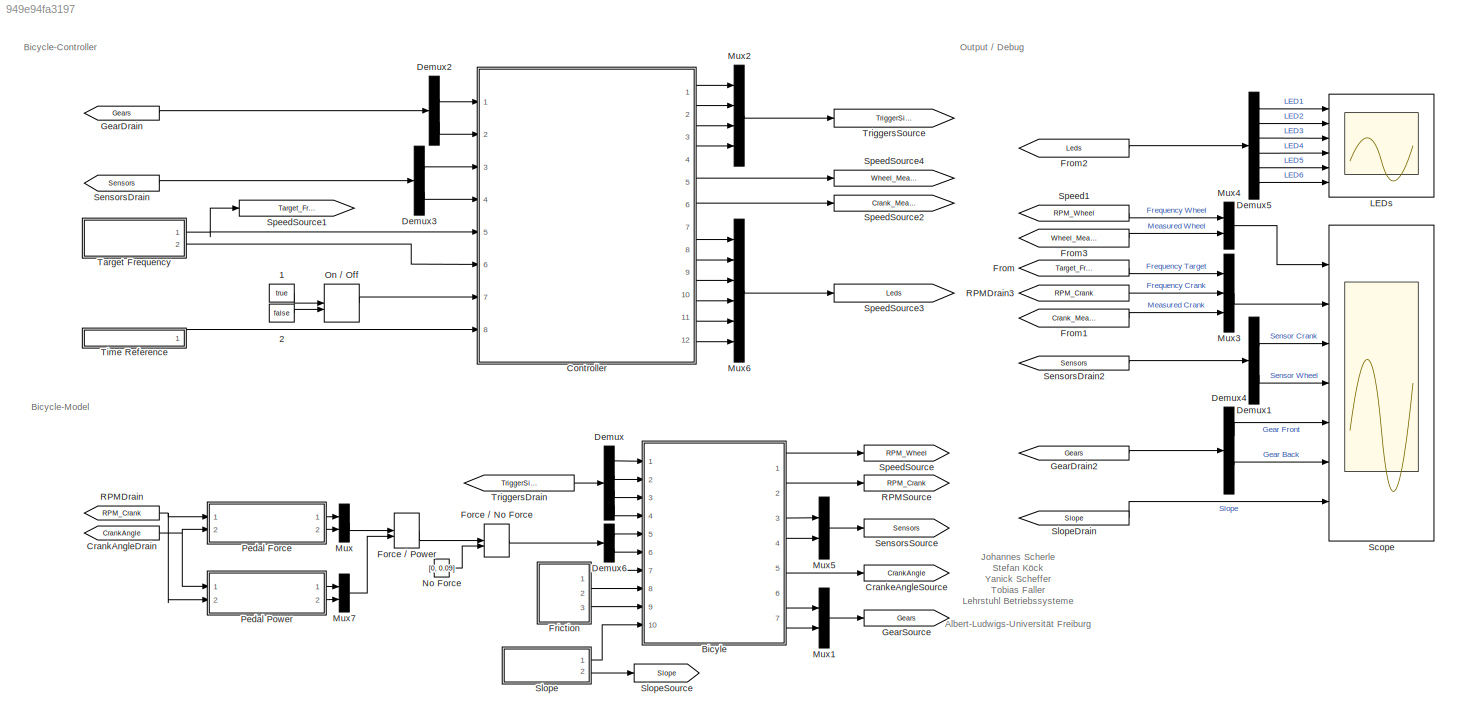
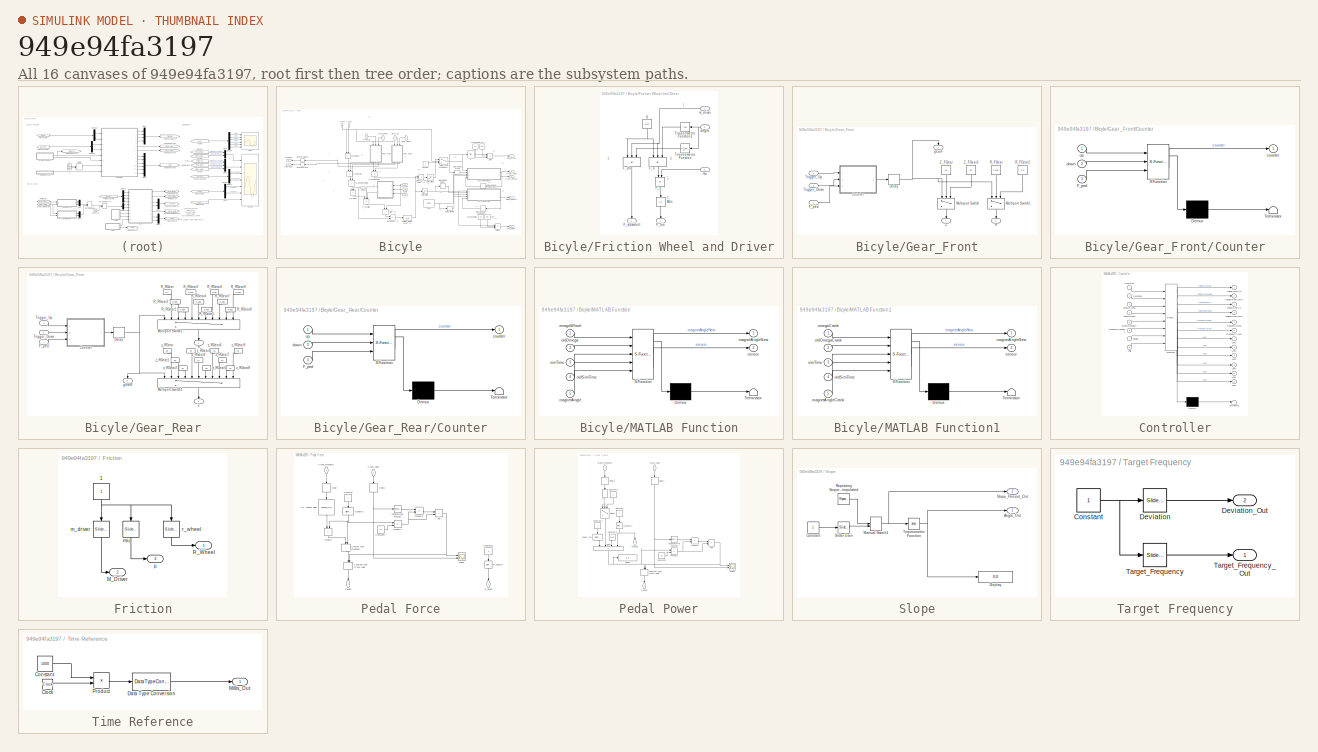
[diagram: thumbnail index - all 16 canvases of the model, root first then tree order]
MODEL slx_949e94fa3197
KIND model
CONFIG AbsTol = auto
CONFIG EnableMultiTasking = on
CONFIG FixedStep = 0.005
CONFIG MaxStep = auto
CONFIG MinStep = auto
CONFIG RelTol = 1e-3
CONFIG SampleTimeConstraint = Unconstrained
CONFIG Solver = FixedStepAuto
CONFIG SolverName = FixedStepAuto
CONFIG StartTime = 0.0
CONFIG StopTime = inf
BLOCK [Constant] 1
  OutDataTypeStr = boolean
  Value = true
BLOCK [Constant] 2
  OutDataTypeStr = boolean
  Value = false
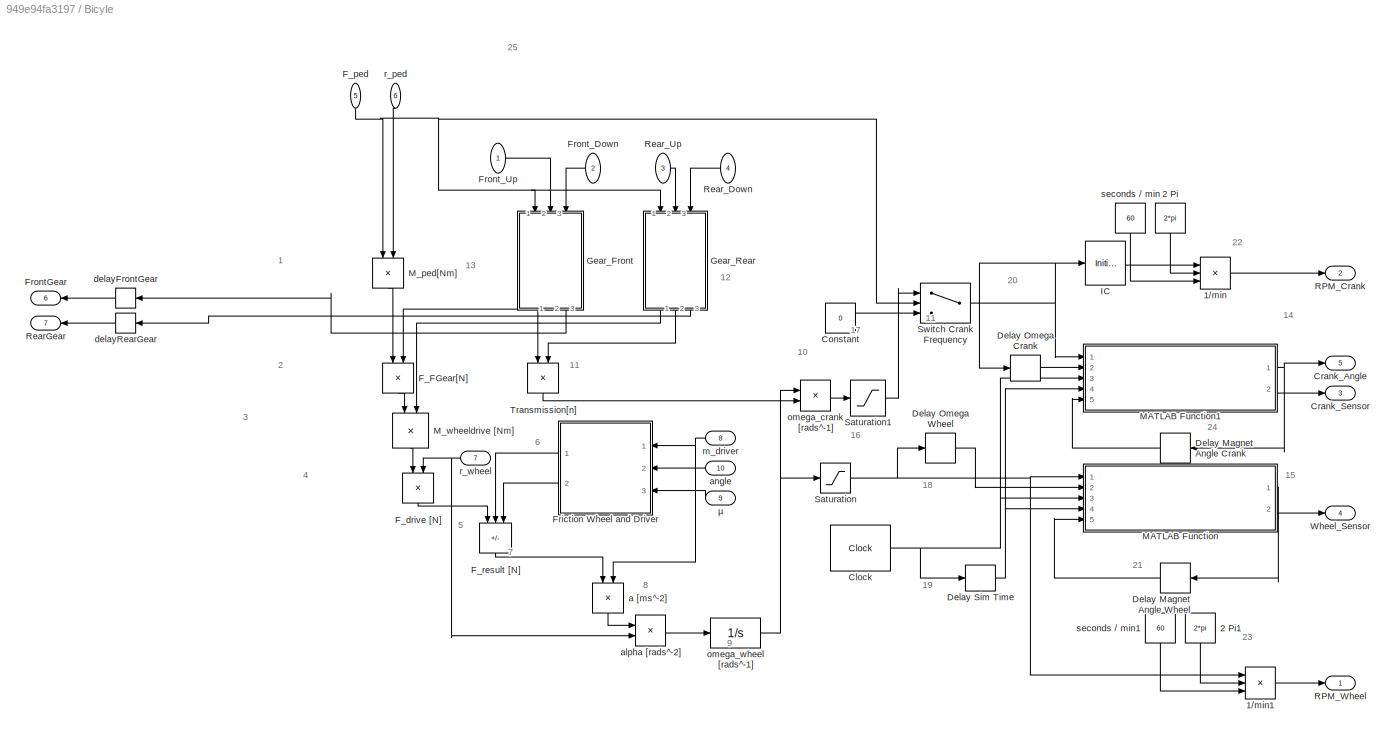
BLOCK [SubSystem] Bicyle
  Ports = [10, 7]
  RequestExecContextInheritance = off
BLOCK [Product] Bicyle/1//min
  Inputs = */*
  OutDataTypeStr = double
  Ports = [3, 1]
BLOCK [Product] Bicyle/1//min1
  Inputs = */*
  Ports = [3, 1]
BLOCK [Constant] Bicyle/2 Pi
  NameLocation = right
  Value = 2*pi
BLOCK [Constant] Bicyle/2 Pi1
  NameLocation = right
  Value = 2*pi
BLOCK [Clock] Bicyle/Clock
  Decimation = 1
  DisplayTime = on
BLOCK [Constant] Bicyle/Constant
  NameLocation = top
  Value = 0
BLOCK [Outport] Bicyle/Crank_Angle
  NameLocation = top
  Port = 5
  VectorParamsAs1DForOutWhenUnconnected = off
BLOCK [Outport] Bicyle/Crank_Sensor
  Port = 3
  VectorParamsAs1DForOutWhenUnconnected = off
BLOCK [Delay] Bicyle/Delay Magnet Angle Crank 
  DelayLength = 1
  InitialCondition = 0
  InputPortMap = u0
  NameLocation = top
  Ports = [1, 1]
BLOCK [Delay] Bicyle/Delay Magnet Angle Wheel
  DelayLength = 1
  InitialCondition = 0
  InputPortMap = u0
  NameLocation = top
  Ports = [1, 1]
BLOCK [Delay] Bicyle/Delay Omega Crank
  DelayLength = 1
  InitialCondition = 1
  InputPortMap = u0
  NameLocation = top
  Ports = [1, 1]
BLOCK [Delay] Bicyle/Delay Omega Wheel
  DelayLength = 1
  InitialCondition = 0
  InputPortMap = u0
  NameLocation = top
  Ports = [1, 1]
BLOCK [Delay] Bicyle/Delay Sim Time
  DelayLength = 1
  InitialCondition = 0
  InputPortMap = u0
  Ports = [1, 1]
BLOCK [Product] Bicyle/F_FGear[N]
  Inputs = */
  NameLocation = left
  Ports = [2, 1]
BLOCK [Product] Bicyle/F_drive [N]
  Inputs = */
  NameLocation = left
  Ports = [2, 1]
BLOCK [Inport] Bicyle/F_ped
  NameLocation = left
  Port = 5
BLOCK [Sum] Bicyle/F_result [N]
  IconShape = rectangular
  Inputs = +--
  NameLocation = right
  Ports = [3, 1]
BLOCK [SubSystem] Bicyle/Friction Wheel and Driver
  Ports = [3, 2]
  RequestExecContextInheritance = off
BLOCK [Abs] Bicyle/Friction Wheel and Driver/Abs
  NameLocation = left
  SaturateOnIntegerOverflow = off
BLOCK [Product] Bicyle/Friction Wheel and Driver/F_dh
  Inputs = 3
  NameLocation = left
  Ports = [3, 1]
BLOCK [Outport] Bicyle/Friction Wheel and Driver/F_downhill
  NameLocation = right
  Port = 2
  VectorParamsAs1DForOutWhenUnconnected = off
BLOCK [Outport] Bicyle/Friction Wheel and Driver/F_fric
  NameLocation = right
  VectorParamsAs1DForOutWhenUnconnected = off
BLOCK [Product] Bicyle/Friction Wheel and Driver/F_n
  Inputs = 3
  NameLocation = left
  Ports = [3, 1]
BLOCK [Product] Bicyle/Friction Wheel and Driver/F_r
  NameLocation = left
  Ports = [2, 1]
BLOCK [Trigonometry] Bicyle/Friction Wheel and Driver/Trigonometric Function
  NameLocation = top
  Ports = [1, 1]
BLOCK [Trigonometry] Bicyle/Friction Wheel and Driver/Trigonometric Function1
  NameLocation = top
  Operator = cos
  Ports = [1, 1]
BLOCK [Inport] Bicyle/Friction Wheel and Driver/angle
  NameLocation = top
  Port = 2
BLOCK [Constant] Bicyle/Friction Wheel and Driver/g
  NameLocation = left
  Value = 9.81
BLOCK [Inport] Bicyle/Friction Wheel and Driver/m_driver
BLOCK [Inport] Bicyle/Friction Wheel and Driver/mu
  NameLocation = top
  Port = 3
BLOCK [Outport] Bicyle/FrontGear
  NameLocation = top
  Port = 6
  VectorParamsAs1DForOutWhenUnconnected = off
BLOCK [Inport] Bicyle/Front_Down
  NameLocation = top
  Port = 2
BLOCK [Inport] Bicyle/Front_Up
BLOCK [SubSystem] Bicyle/Gear_Front
  NameLocation = left
  Ports = [3, 3]
  RequestExecContextInheritance = off
BLOCK [SubSystem] Bicyle/Gear_Front/Counter
  ErrorFcn = Stateflow.Translate.translate
  PermitHierarchicalResolution = ExplicitOnly
  Ports = [3, 1]
  RequestExecContextInheritance = off
  SFBlockType = Chart
  TreatAsAtomicUnit = on
BLOCK [Demux] Bicyle/Gear_Front/Counter/ Demux 
  Outputs = 1
  Ports = [1, 1]
BLOCK [S-Function] Bicyle/Gear_Front/Counter/ SFunction 
  EnableBusSupport = on
  FunctionName = sf_sfun
  PortCounts = [3 2]
  Ports = [3, 2]
  SFcnIsStateOwnerBlock = off
  SFunctionDeploymentMode = off
  Tag = Stateflow S-Function 3
BLOCK [Terminator] Bicyle/Gear_Front/Counter/ Terminator 
BLOCK [Inport] Bicyle/Gear_Front/Counter/F_ped
  Port = 3
BLOCK [Outport] Bicyle/Gear_Front/Counter/counter
  VectorParamsAs1DForOutWhenUnconnected = off
BLOCK [Inport] Bicyle/Gear_Front/Counter/down
  Port = 2
BLOCK [Inport] Bicyle/Gear_Front/Counter/up
BLOCK [Delay] Bicyle/Gear_Front/Delay
  DelayLength = 1
  InputPortMap = u0
  Ports = [1, 1]
BLOCK [Inport] Bicyle/Gear_Front/F_ped
BLOCK [MultiPortSwitch] Bicyle/Gear_Front/Multiport Switch
  DiagnosticForDefault = Warning
  InputSameDT = off
  Inputs = 2
  NameLocation = left
  Ports = [3, 1]
  SaturateOnIntegerOverflow = off
BLOCK [MultiPortSwitch] Bicyle/Gear_Front/Multiport Switch1
  DiagnosticForDefault = Warning
  InputSameDT = off
  Inputs = 2
  NameLocation = left
  Ports = [3, 1]
  SaturateOnIntegerOverflow = off
BLOCK [Outport] Bicyle/Gear_Front/R
  NameLocation = right
  Port = 2
  VectorParamsAs1DForOutWhenUnconnected = off
BLOCK [Constant] Bicyle/Gear_Front/R_FGear
  NameLocation = left
  Value = 0.136
BLOCK [Constant] Bicyle/Gear_Front/R_FGear2
  NameLocation = left
  Value = 0.2
BLOCK [Inport] Bicyle/Gear_Front/Trigger_Down
  Port = 3
BLOCK [Inport] Bicyle/Gear_Front/Trigger_Up
  Port = 2
BLOCK [Outport] Bicyle/Gear_Front/Z
  NameLocation = right
  VectorParamsAs1DForOutWhenUnconnected = off
BLOCK [Constant] Bicyle/Gear_Front/Z_FGear
  NameLocation = left
  Value = 34
BLOCK [Constant] Bicyle/Gear_Front/Z_FGear2
  NameLocation = left
  Value = 50
BLOCK [Outport] Bicyle/Gear_Front/gearF
  NameLocation = right
  Port = 3
  VectorParamsAs1DForOutWhenUnconnected = off
BLOCK [SubSystem] Bicyle/Gear_Rear
  NameLocation = right
  Ports = [3, 3]
  RequestExecContextInheritance = off
BLOCK [SubSystem] Bicyle/Gear_Rear/Counter
  ErrorFcn = Stateflow.Translate.translate
  PermitHierarchicalResolution = ExplicitOnly
  Ports = [3, 1]
  RequestExecContextInheritance = off
  SFBlockType = Chart
  TreatAsAtomicUnit = on
BLOCK [Demux] Bicyle/Gear_Rear/Counter/ Demux 
  Outputs = 1
  Ports = [1, 1]
BLOCK [S-Function] Bicyle/Gear_Rear/Counter/ SFunction 
  EnableBusSupport = on
  FunctionName = sf_sfun
  PortCounts = [3 2]
  Ports = [3, 2]
  SFcnIsStateOwnerBlock = off
  SFunctionDeploymentMode = off
  Tag = Stateflow S-Function 4
BLOCK [Terminator] Bicyle/Gear_Rear/Counter/ Terminator 
BLOCK [Inport] Bicyle/Gear_Rear/Counter/F_ped
  Port = 3
BLOCK [Outport] Bicyle/Gear_Rear/Counter/counter
  VectorParamsAs1DForOutWhenUnconnected = off
BLOCK [Inport] Bicyle/Gear_Rear/Counter/down
  Port = 2
BLOCK [Inport] Bicyle/Gear_Rear/Counter/up
BLOCK [Delay] Bicyle/Gear_Rear/Delay
  DelayLength = 1
  InputPortMap = u0
  Ports = [1, 1]
BLOCK [Inport] Bicyle/Gear_Rear/F_ped
BLOCK [MultiPortSwitch] Bicyle/Gear_Rear/Multiport Switch1
  DiagnosticForDefault = Warning
  InputSameDT = off
  Inputs = 10
  NameLocation = left
  Ports = [11, 1]
  SaturateOnIntegerOverflow = off
BLOCK [MultiPortSwitch] Bicyle/Gear_Rear/Multiport Switch2
  DiagnosticForDefault = Warning
  InputSameDT = off
  Inputs = 10
  NameLocation = left
  Ports = [11, 1]
  SaturateOnIntegerOverflow = off
BLOCK [Outport] Bicyle/Gear_Rear/R
  NameLocation = right
  VectorParamsAs1DForOutWhenUnconnected = off
BLOCK [Constant] Bicyle/Gear_Rear/R_RGear
  NameLocation = right
  Value = 0.1
BLOCK [Constant] Bicyle/Gear_Rear/R_RGear1
  NameLocation = right
  Value = 0.084
BLOCK [Constant] Bicyle/Gear_Rear/R_RGear2
  NameLocation = right
  Value = 0.092
BLOCK [Constant] Bicyle/Gear_Rear/R_RGear3
  NameLocation = right
  Value = 0.076
BLOCK [Constant] Bicyle/Gear_Rear/R_RGear4
  NameLocation = right
  Value = 0.068
BLOCK [Constant] Bicyle/Gear_Rear/R_RGear5
  NameLocation = right
  Value = 0.064
BLOCK [Constant] Bicyle/Gear_Rear/R_RGear6
  NameLocation = right
  Value = 0.06
BLOCK [Constant] Bicyle/Gear_Rear/R_RGear7
  NameLocation = right
  Value = 0.056
BLOCK [Constant] Bicyle/Gear_Rear/R_RGear8
  NameLocation = right
  Value = 0.052
BLOCK [Constant] Bicyle/Gear_Rear/R_RGear9
  NameLocation = right
  Value = 0.048
BLOCK [Inport] Bicyle/Gear_Rear/Trigger_Down
  Port = 3
BLOCK [Inport] Bicyle/Gear_Rear/Trigger_Up
  NameLocation = top
  Port = 2
BLOCK [Outport] Bicyle/Gear_Rear/Z
  NameLocation = right
  Port = 2
  VectorParamsAs1DForOutWhenUnconnected = off
BLOCK [Outport] Bicyle/Gear_Rear/gearR
  NameLocation = right
  Port = 3
  VectorParamsAs1DForOutWhenUnconnected = off
BLOCK [Constant] Bicyle/Gear_Rear/z_RGear
  NameLocation = right
  Value = 25
BLOCK [Constant] Bicyle/Gear_Rear/z_RGear1
  NameLocation = right
  Value = 23
BLOCK [Constant] Bicyle/Gear_Rear/z_RGear2
  NameLocation = right
  Value = 21
BLOCK [Constant] Bicyle/Gear_Rear/z_RGear3
  NameLocation = right
  Value = 19
BLOCK [Constant] Bicyle/Gear_Rear/z_RGear4
  NameLocation = right
  Value = 17
BLOCK [Constant] Bicyle/Gear_Rear/z_RGear5
  NameLocation = right
  Value = 16
BLOCK [Constant] Bicyle/Gear_Rear/z_RGear6
  NameLocation = right
  Value = 15
BLOCK [Constant] Bicyle/Gear_Rear/z_RGear7
  NameLocation = right
  Value = 14
BLOCK [Constant] Bicyle/Gear_Rear/z_RGear8
  NameLocation = right
  Value = 13
BLOCK [Constant] Bicyle/Gear_Rear/z_RGear9
  NameLocation = right
  Value = 12
BLOCK [InitialCondition] Bicyle/IC
  Value = 0
BLOCK [SubSystem] Bicyle/MATLAB Function
  ErrorFcn = Stateflow.Translate.translate
  PermitHierarchicalResolution = ExplicitOnly
  Ports = [5, 2]
  RequestExecContextInheritance = off
  SFBlockType = MATLAB Function
  TreatAsAtomicUnit = on
BLOCK [Demux] Bicyle/MATLAB Function/ Demux 
  Outputs = 1
  Ports = [1, 1]
BLOCK [S-Function] Bicyle/MATLAB Function/ SFunction 
  EnableBusSupport = on
  FunctionName = sf_sfun
  PortCounts = [5 3]
  Ports = [5, 3]
  SFcnIsStateOwnerBlock = off
  SFunctionDeploymentMode = off
  Tag = Stateflow S-Function 2
BLOCK [Terminator] Bicyle/MATLAB Function/ Terminator 
BLOCK [Inport] Bicyle/MATLAB Function/magnetAngle
  Port = 5
BLOCK [Outport] Bicyle/MATLAB Function/magnetAngleNew
  VectorParamsAs1DForOutWhenUnconnected = off
BLOCK [Inport] Bicyle/MATLAB Function/oldOmega
  Port = 2
BLOCK [Inport] Bicyle/MATLAB Function/oldSimTime
  Port = 4
BLOCK [Inport] Bicyle/MATLAB Function/omegaWheel
BLOCK [Outport] Bicyle/MATLAB Function/sensor
  Port = 2
  VectorParamsAs1DForOutWhenUnconnected = off
BLOCK [Inport] Bicyle/MATLAB Function/simTime
  Port = 3
BLOCK [SubSystem] Bicyle/MATLAB Function1
  ErrorFcn = Stateflow.Translate.translate
  NameLocation = top
  PermitHierarchicalResolution = ExplicitOnly
  Ports = [5, 2]
  RequestExecContextInheritance = off
  SFBlockType = MATLAB Function
  TreatAsAtomicUnit = on
BLOCK [Demux] Bicyle/MATLAB Function1/ Demux 
  Outputs = 1
  Ports = [1, 1]
BLOCK [S-Function] Bicyle/MATLAB Function1/ SFunction 
  EnableBusSupport = on
  FunctionName = sf_sfun
  PortCounts = [5 3]
  Ports = [5, 3]
  SFcnIsStateOwnerBlock = off
  SFunctionDeploymentMode = off
  Tag = Stateflow S-Function 5
BLOCK [Terminator] Bicyle/MATLAB Function1/ Terminator 
BLOCK [Inport] Bicyle/MATLAB Function1/magnetAngleCrank
  Port = 5
BLOCK [Outport] Bicyle/MATLAB Function1/magnetAngleNew
  VectorParamsAs1DForOutWhenUnconnected = off
BLOCK [Inport] Bicyle/MATLAB Function1/oldOmegaCrank
  Port = 2
BLOCK [Inport] Bicyle/MATLAB Function1/oldSimTime
  Port = 4
BLOCK [Inport] Bicyle/MATLAB Function1/omegaCrank
BLOCK [Outport] Bicyle/MATLAB Function1/sensor
  Port = 2
  VectorParamsAs1DForOutWhenUnconnected = off
BLOCK [Inport] Bicyle/MATLAB Function1/simTime
  Port = 3
BLOCK [Product] Bicyle/M_ped[Nm]
  NameLocation = left
  Ports = [2, 1]
BLOCK [Product] Bicyle/M_wheeldrive [Nm]
  NameLocation = left
  Ports = [2, 1]
BLOCK [Outport] Bicyle/RPM_Crank
  Port = 2
  VectorParamsAs1DForOutWhenUnconnected = off
BLOCK [Outport] Bicyle/RPM_Wheel
  VectorParamsAs1DForOutWhenUnconnected = off
BLOCK [Outport] Bicyle/RearGear
  Port = 7
  VectorParamsAs1DForOutWhenUnconnected = off
BLOCK [Inport] Bicyle/Rear_Down
  Port = 4
BLOCK [Inport] Bicyle/Rear_Up
  NameLocation = top
  Port = 3
BLOCK [Saturate] Bicyle/Saturation
  LowerLimit = 0
  UpperLimit = 100
BLOCK [Saturate] Bicyle/Saturation1
  LowerLimit = 0
  NameLocation = top
  UpperLimit = 18
BLOCK [Switch] Bicyle/Switch Crank Frequency
  Criteria = u2 ~= 0
  InputSameDT = off
  NameLocation = top
  SaturateOnIntegerOverflow = off
BLOCK [Product] Bicyle/Transmission[n]
  Inputs = */
  NameLocation = left
  Ports = [2, 1]
BLOCK [Outport] Bicyle/Wheel_Sensor
  Port = 4
  VectorParamsAs1DForOutWhenUnconnected = off
BLOCK [Product] Bicyle/a [ms^-2]
  Inputs = */
  NameLocation = left
  Ports = [2, 1]
BLOCK [Product] Bicyle/alpha [rads^-2]
  Inputs = */
  Ports = [2, 1]
BLOCK [Inport] Bicyle/angle
  NameLocation = top
  Port = 10
BLOCK [Delay] Bicyle/delayFrontGear
  DelayLength = 1
  InitialCondition = 0
  InputPortMap = u0
  NameLocation = top
  Ports = [1, 1]
BLOCK [Delay] Bicyle/delayRearGear
  DelayLength = 1
  InitialCondition = 0
  InputPortMap = u0
  Ports = [1, 1]
BLOCK [Inport] Bicyle/m_driver
  NameLocation = top
  Port = 8
BLOCK [Product] Bicyle/omega_crank [rads^-1]
  Inputs = */
  Ports = [2, 1]
BLOCK [Integrator] Bicyle/omega_wheel [rads^-1]
  LimitOutput = on
  LowerSaturationLimit = 0
  NameLocation = top
  Ports = [1, 1]
  UpperSaturationLimit = 60
BLOCK [Inport] Bicyle/r_ped
  NameLocation = right
  Port = 6
BLOCK [Inport] Bicyle/r_wheel
  NameLocation = top
  Port = 7
BLOCK [Constant] Bicyle/seconds // min
  NameLocation = left
  Value = 60
BLOCK [Constant] Bicyle/seconds // min1
  NameLocation = left
  Value = 60
BLOCK [Inport] Bicyle/µ
  Port = 9
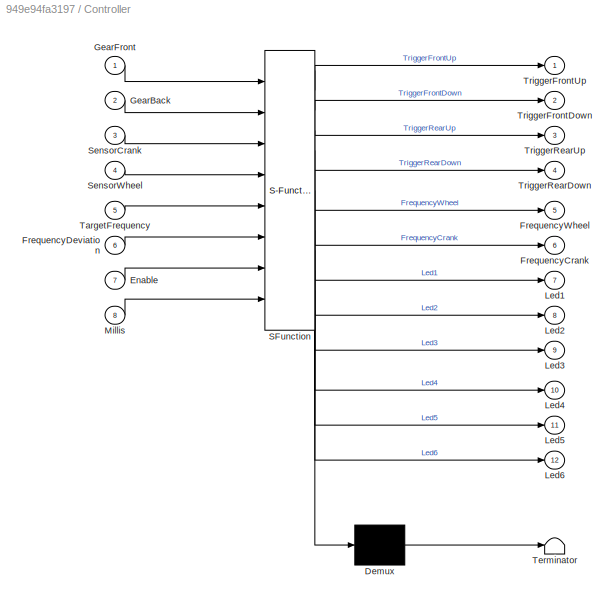
BLOCK [SubSystem] Controller
  ErrorFcn = Stateflow.Translate.translate
  PermitHierarchicalResolution = ExplicitOnly
  Ports = [8, 12]
  RequestExecContextInheritance = off
  SFBlockType = Chart
  SystemSampleTime = 0.005
  TreatAsAtomicUnit = on
BLOCK [Demux] Controller/ Demux 
  Outputs = 1
  Ports = [1, 1]
BLOCK [S-Function] Controller/ SFunction 
  EnableBusSupport = on
  FunctionName = sf_sfun
  PortCounts = [8 13]
  Ports = [8, 13]
  SFcnIsStateOwnerBlock = off
  SFunctionDeploymentMode = off
  Tag = Stateflow S-Function 1
BLOCK [Terminator] Controller/ Terminator 
BLOCK [Inport] Controller/Enable
  Port = 7
BLOCK [Outport] Controller/FrequencyCrank
  Port = 6
  VectorParamsAs1DForOutWhenUnconnected = off
BLOCK [Inport] Controller/FrequencyDeviation
  Port = 6
BLOCK [Outport] Controller/FrequencyWheel
  Port = 5
  VectorParamsAs1DForOutWhenUnconnected = off
BLOCK [Inport] Controller/GearBack
  Port = 2
BLOCK [Inport] Controller/GearFront
BLOCK [Outport] Controller/Led1
  Port = 7
  VectorParamsAs1DForOutWhenUnconnected = off
BLOCK [Outport] Controller/Led2
  Port = 8
  VectorParamsAs1DForOutWhenUnconnected = off
BLOCK [Outport] Controller/Led3
  Port = 9
  VectorParamsAs1DForOutWhenUnconnected = off
BLOCK [Outport] Controller/Led4
  Port = 10
  VectorParamsAs1DForOutWhenUnconnected = off
BLOCK [Outport] Controller/Led5
  Port = 11
  VectorParamsAs1DForOutWhenUnconnected = off
BLOCK [Outport] Controller/Led6
  Port = 12
  VectorParamsAs1DForOutWhenUnconnected = off
BLOCK [Inport] Controller/Millis
  Port = 8
BLOCK [Inport] Controller/SensorCrank
  Port = 3
BLOCK [Inport] Controller/SensorWheel
  Port = 4
BLOCK [Inport] Controller/TargetFrequency
  Port = 5
BLOCK [Outport] Controller/TriggerFrontDown
  Port = 2
  VectorParamsAs1DForOutWhenUnconnected = off
BLOCK [Outport] Controller/TriggerFrontUp
  VectorParamsAs1DForOutWhenUnconnected = off
BLOCK [Outport] Controller/TriggerRearDown
  Port = 4
  VectorParamsAs1DForOutWhenUnconnected = off
BLOCK [Outport] Controller/TriggerRearUp
  Port = 3
  VectorParamsAs1DForOutWhenUnconnected = off
BLOCK [From] CrankAngleDrain
  GotoTag = CrankAngle
BLOCK [Goto] CrankeAngleSource
  GotoTag = CrankAngle
BLOCK [Demux] Demux
  Ports = [1, 4]
BLOCK [Demux] Demux1
  Outputs = 2
  Ports = [1, 2]
BLOCK [Demux] Demux2
  Outputs = 2
  Ports = [1, 2]
BLOCK [Demux] Demux3
  Outputs = 2
  Ports = [1, 2]
BLOCK [Demux] Demux4
  Outputs = 2
  Ports = [1, 2]
BLOCK [Demux] Demux5
  Outputs = 6
  Ports = [1, 6]
BLOCK [Demux] Demux6
  Outputs = 2
  Ports = [1, 2]
BLOCK [ManualSwitch] Force // No Force
  NameLocation = top
BLOCK [ManualSwitch] Force // Power
  CurrentSetting = 0
  NameLocation = top
BLOCK [SubSystem] Friction
  Ports = [0, 3]
  RequestExecContextInheritance = off
BLOCK [Constant] Friction/1
  NameLocation = left
BLOCK [Outport] Friction/M_Driver
  Port = 2
  VectorParamsAs1DForOutWhenUnconnected = off
BLOCK [Outport] Friction/R_Wheel
  VectorParamsAs1DForOutWhenUnconnected = off
BLOCK [Reference] Friction/m_driver  REF=simulink/Math
Operations/Slider
Gain
  NameLocation = left
  Ports = [1, 1]
  SourceBlock = simulink/Math\nOperations/Slider\nGain
  SourceProductBaseCode = SL
  SourceType = Slider Gain
BLOCK [Reference] Friction/mu  REF=simulink/Math
Operations/Slider
Gain
  NameLocation = left
  Ports = [1, 1]
  SourceBlock = simulink/Math\nOperations/Slider\nGain
  SourceProductBaseCode = SL
  SourceType = Slider Gain
BLOCK [Reference] Friction/r_wheel  REF=simulink/Math
Operations/Slider
Gain
  NameLocation = left
  Ports = [1, 1]
  SourceBlock = simulink/Math\nOperations/Slider\nGain
  SourceProductBaseCode = SL
  SourceType = Slider Gain
BLOCK [Outport] Friction/µ
  Port = 3
  VectorParamsAs1DForOutWhenUnconnected = off
BLOCK [From] From
  GotoTag = Target_Frequency
BLOCK [From] From1
  GotoTag = Crank_Measured
BLOCK [From] From2
  GotoTag = Leds
BLOCK [From] From3
  GotoTag = Wheel_Measured
BLOCK [From] GearDrain
  GotoTag = Gears
BLOCK [From] GearDrain2
  GotoTag = Gears
BLOCK [Goto] GearSource
  GotoTag = Gears
BLOCK [Scope] LEDs
  Floating = off
  NumInputPorts = 6
  Ports = [6]
  ScopeSpecificationString = Simulink.scopes.TimeScopeBlockCfg('CurrentConfiguration', extmgr.ConfigurationSet(extmgr.Configuration('Core','General UI',true),extmgr.Configuration('Core','Source UI',true),extmgr.Configuration('Sources','WiredSimulink',true,'DataLoggingVariableName','ScopeData1','DataLoggingSaveFormat','Array','DataLoggingDecimation','1','DataLoggingDecimateData',true),extmgr.Configuration('Visuals','Time Domai...<+10059ch>
BLOCK [Mux] Mux
  DisplayOption = bar
  Inputs = 2
  Ports = [2, 1]
BLOCK [Mux] Mux1
  DisplayOption = bar
  Inputs = 2
  Ports = [2, 1]
BLOCK [Mux] Mux2
  DisplayOption = bar
  Ports = [4, 1]
BLOCK [Mux] Mux3
  DisplayOption = bar
  Inputs = Frequency Target,Frequency Crank,Measured Crank
  Ports = [3, 1]
BLOCK [Mux] Mux4
  DisplayOption = bar
  Inputs = Frequency Wheel,Measured Wheel
  Ports = [2, 1]
BLOCK [Mux] Mux5
  DisplayOption = bar
  Inputs = 2
  Ports = [2, 1]
BLOCK [Mux] Mux6
  DisplayOption = bar
  Inputs = 6
  Ports = [6, 1]
BLOCK [Mux] Mux7
  DisplayOption = bar
  Inputs = 2
  Ports = [2, 1]
BLOCK [Constant] No Force
  OutDataTypeStr = double
  Value = [0, 0.09]
  VectorParams1D = off
BLOCK [ManualSwitch] On // Off
  NameLocation = top
BLOCK [SubSystem] Pedal Force
  Ports = [2, 2]
  RequestExecContextInheritance = off
BLOCK [Lookup_n-D] Pedal Force/1-D Lookup Table
  BreakpointsForDimension1 = [0 10 20 30 40 50 60 70 80 90 100 110 120 130 140 150 160]
  NameLocation = left
  NumberOfTableDimensions = 1
  Ports = [1, 1]
  RndMeth = Simplest
  Table = [1 1 1 1 1 1 1 1 1 0.99 0.95 0.8 0.7 0.6 0.5 0.3 0]
BLOCK [Sum] Pedal Force/Add
  IconShape = rectangular
  Ports = [2, 1]
BLOCK [Constant] Pedal Force/Constant
  NameLocation = left
BLOCK [ManualSwitch] Pedal Force/Constant over Crank Angle
  CurrentSetting = 0
  NameLocation = left
BLOCK [Constant] Pedal Force/Constant1
  Value = 0.7
BLOCK [Constant] Pedal Force/Constant2
  NameLocation = left
BLOCK [ManualSwitch] Pedal Force/Contant over Frequency
  CurrentSetting = 0
  NameLocation = left
BLOCK [Inport] Pedal Force/Crank_Angle
  NameLocation = left
  Port = 2
BLOCK [Inport] Pedal Force/Crank_Frequency
  NameLocation = left
BLOCK [Delay] Pedal Force/Delay
  DelayLength = 1
  InputPortMap = u0
  NameLocation = left
  Ports = [1, 1]
BLOCK [Delay] Pedal Force/Delay1
  DelayLength = 1
  InputPortMap = u0
  NameLocation = left
  Ports = [1, 1]
BLOCK [Reference] Pedal Force/F_ped[N]  REF=simulink/Math
Operations/Slider
Gain
  NameLocation = right
  Ports = [1, 1]
  SourceBlock = simulink/Math\nOperations/Slider\nGain
  SourceProductBaseCode = SL
  SourceType = Slider Gain
BLOCK [Outport] Pedal Force/F_pedal
  NameLocation = left
  VectorParamsAs1DForOutWhenUnconnected = off
BLOCK [Product] Pedal Force/Product
  NameLocation = left
  Ports = [2, 1]
BLOCK [Product] Pedal Force/Product1
  Ports = [2, 1]
BLOCK [Product] Pedal Force/Product2
  Ports = [2, 1]
BLOCK [Reference] Pedal Force/R_ped[m]  REF=simulink/Math
Operations/Slider
Gain
  NameLocation = left
  Ports = [1, 1]
  SourceBlock = simulink/Math\nOperations/Slider\nGain
  SourceProductBaseCode = SL
  SourceType = Slider Gain
BLOCK [Outport] Pedal Force/R_pedal
  NameLocation = left
  Port = 2
  VectorParamsAs1DForOutWhenUnconnected = off
BLOCK [Scope] Pedal Force/Scope
  Floating = off
  NumInputPorts = 2
  Ports = [2]
  ScopeSpecificationString = Simulink.scopes.TimeScopeBlockCfg('CurrentConfiguration', extmgr.ConfigurationSet(extmgr.Configuration('Core','General UI',true),extmgr.Configuration('Core','Source UI',true),extmgr.Configuration('Sources','WiredSimulink',true,'DataLoggingVariableName','ScopeData2','DataLoggingLimitDataPoints',true,'DataLoggingSaveFormat','Array','DataLoggingDecimation','1','DataLoggingDecimateData',true),extmgr.C...<+2351ch>
BLOCK [Trigonometry] Pedal Force/Trigonometric Function
  Ports = [1, 1]
BLOCK [SubSystem] Pedal Power
  Ports = [2, 2]
  RequestExecContextInheritance = off
BLOCK [Sum] Pedal Power/Add
  IconShape = rectangular
  Ports = [2, 1]
BLOCK [Constant] Pedal Power/Constant
  NameLocation = left
BLOCK [ManualSwitch] Pedal Power/Constant over Crank Angle
  NameLocation = left
BLOCK [Constant] Pedal Power/Constant1
  Value = 0.7
BLOCK [Constant] Pedal Power/Constant2
  NameLocation = right
  Value = 0.105
BLOCK [Constant] Pedal Power/Constant3
  NameLocation = left
BLOCK [Constant] Pedal Power/Constant4
  NameLocation = left
BLOCK [Inport] Pedal Power/Crank_Angle
  NameLocation = left
BLOCK [Inport] Pedal Power/Crank_Frequency
  NameLocation = left
  Port = 2
BLOCK [Delay] Pedal Power/Delay1
  DelayLength = 1
  InputPortMap = u0
  NameLocation = left
  Ports = [1, 1]
BLOCK [Delay] Pedal Power/Delay2
  DelayLength = 1
  InitialCondition = 1
  InputPortMap = u0
  NameLocation = left
  Ports = [1, 1]
BLOCK [Display] Pedal Power/Display
  Decimation = 1
  Ports = [1]
BLOCK [Product] Pedal Power/Divide
  Inputs = *///
  NameLocation = left
  Ports = [4, 1]
BLOCK [Outport] Pedal Power/F_pedal
  NameLocation = left
  VectorParamsAs1DForOutWhenUnconnected = off
BLOCK [InitialCondition] Pedal Power/IC
  NameLocation = left
BLOCK [Reference] Pedal Power/Power [W]  REF=simulink/Math
Operations/Slider
Gain
  NameLocation = left
  Ports = [1, 1]
  SourceBlock = simulink/Math\nOperations/Slider\nGain
  SourceProductBaseCode = SL
  SourceType = Slider Gain
BLOCK [Product] Pedal Power/Product1
  Ports = [2, 1]
BLOCK [Product] Pedal Power/Product2
  Ports = [2, 1]
BLOCK [Reference] Pedal Power/R_ped[m]  REF=simulink/Math
Operations/Slider
Gain
  NameLocation = left
  Ports = [1, 1]
  SourceBlock = simulink/Math\nOperations/Slider\nGain
  SourceProductBaseCode = SL
  SourceType = Slider Gain
BLOCK [Outport] Pedal Power/R_pedal
  NameLocation = left
  Port = 2
  VectorParamsAs1DForOutWhenUnconnected = off
BLOCK [Scope] Pedal Power/Scope
  Floating = off
  NumInputPorts = 2
  Ports = [2]
  ScopeSpecificationString = Simulink.scopes.TimeScopeBlockCfg('CurrentConfiguration', extmgr.ConfigurationSet(extmgr.Configuration('Core','General UI',true),extmgr.Configuration('Core','Source UI',true),extmgr.Configuration('Sources','WiredSimulink',true,'DataLoggingVariableName','ScopeData2','DataLoggingLimitDataPoints',true,'DataLoggingSaveFormat','Array','DataLoggingDecimation','1','DataLoggingDecimateData',true),extmgr.C...<+2324ch>
BLOCK [Switch] Pedal Power/Switch
  Criteria = u2 ~= 0
  InputSameDT = off
  NameLocation = left
  SaturateOnIntegerOverflow = off
BLOCK [Trigonometry] Pedal Power/Trigonometric Function
  Ports = [1, 1]
BLOCK [From] RPMDrain
  GotoTag = RPM_Crank
  NameLocation = top
BLOCK [From] RPMDrain3
  GotoTag = RPM_Crank
BLOCK [Goto] RPMSource
  GotoTag = RPM_Crank
BLOCK [Scope] Scope
  Floating = off
  NumInputPorts = 7
  Ports = [7]
  ScopeSpecificationString = Simulink.scopes.TimeScopeBlockCfg('CurrentConfiguration', extmgr.ConfigurationSet(extmgr.Configuration('Core','General UI',true),extmgr.Configuration('Core','Source UI',true),extmgr.Configuration('Sources','WiredSimulink',true,'DataLoggingVariableName','ScopeData1','DataLoggingSaveFormat','Array','DataLoggingDecimation','1','DataLoggingDecimateData',true),extmgr.Configuration('Visuals','Time Domai...<+8782ch>
BLOCK [From] SensorsDrain
  GotoTag = Sensors
BLOCK [From] SensorsDrain2
  GotoTag = Sensors
BLOCK [Goto] SensorsSource
  GotoTag = Sensors
BLOCK [SubSystem] Slope
  Ports = [0, 2]
  RequestExecContextInheritance = off
BLOCK [Outport] Slope/Angle_Out
  VectorParamsAs1DForOutWhenUnconnected = off
BLOCK [Constant] Slope/Constant
BLOCK [Display] Slope/Display
  Decimation = 1
  Ports = [1]
BLOCK [ManualSwitch] Slope/Manual Switch1
BLOCK [Reference] Slope/Repeating Sequence Interpolated  REF=simulink/Sources/Repeating
Sequence
Interpolated
  Ports = [0, 1]
  SourceBlock = simulink/Sources/Repeating\nSequence\nInterpolated
  SourceProductBaseCode = SL
  SourceType = Repeating Sequence Interpolated
BLOCK [Reference] Slope/Slider Gain  REF=simulink/Math
Operations/Slider
Gain
  Ports = [1, 1]
  SourceBlock = simulink/Math\nOperations/Slider\nGain
  SourceProductBaseCode = SL
  SourceType = Slider Gain
BLOCK [Outport] Slope/Slope_Percent_Out
  Port = 2
  VectorParamsAs1DForOutWhenUnconnected = off
BLOCK [Trigonometry] Slope/Trigonometric Function
  Operator = atan
  Ports = [1, 1]
BLOCK [From] SlopeDrain
  GotoTag = Slope
BLOCK [Goto] SlopeSource
  GotoTag = Slope
BLOCK [From] Speed1
  GotoTag = RPM_Wheel
BLOCK [Goto] SpeedSource
  GotoTag = RPM_Wheel
BLOCK [Goto] SpeedSource1
  GotoTag = Target_Frequency
BLOCK [Goto] SpeedSource2
  GotoTag = Crank_Measured
BLOCK [Goto] SpeedSource3
  GotoTag = Leds
BLOCK [Goto] SpeedSource4
  GotoTag = Wheel_Measured
BLOCK [SubSystem] Target Frequency
  Ports = [0, 2]
  RequestExecContextInheritance = off
BLOCK [Constant] Target Frequency/Constant
  OutDataTypeStr = double
BLOCK [Reference] Target Frequency/Deviation  REF=simulink/Math
Operations/Slider
Gain
  Ports = [1, 1]
  SourceBlock = simulink/Math\nOperations/Slider\nGain
  SourceProductBaseCode = SL
  SourceType = Slider Gain
BLOCK [Outport] Target Frequency/Deviation_Out
  Port = 2
  VectorParamsAs1DForOutWhenUnconnected = off
BLOCK [Reference] Target Frequency/Target_Frequency  REF=simulink/Math
Operations/Slider
Gain
  Ports = [1, 1]
  SourceBlock = simulink/Math\nOperations/Slider\nGain
  SourceProductBaseCode = SL
  SourceType = Slider Gain
BLOCK [Outport] Target Frequency/Target_Frequency_Out
  VectorParamsAs1DForOutWhenUnconnected = off
BLOCK [SubSystem] Time Reference
  Ports = [0, 1]
  RequestExecContextInheritance = off
BLOCK [Clock] Time Reference/Clock
  Decimation = 1
  DisplayTime = on
BLOCK [Constant] Time Reference/Constant
  Value = 1000
BLOCK [DataTypeConversion] Time Reference/Data Type Conversion
  OutDataTypeStr = uint32
  RndMeth = Floor
  SaturateOnIntegerOverflow = off
BLOCK [Outport] Time Reference/Millis_Out
  SampleTime = 0.005
  VectorParamsAs1DForOutWhenUnconnected = off
BLOCK [Product] Time Reference/Product
  Ports = [2, 1]
BLOCK [From] TriggersDrain
  GotoTag = TriggerSignals
  NameLocation = top
BLOCK [Goto] TriggersSource
  GotoTag = TriggerSignals
ANNOTATION (root): Johannes Scherle Stefan Köck Yanick Scheffer Tobias Faller Lehrstuhl Betriebssysteme Albert-Ludwigs-Universität Freiburg
ANNOTATION (root): Bicycle-Controller
ANNOTATION (root): Bicycle-Model
ANNOTATION (root): Output / Debug
ANNOTATION Bicyle: 10
ANNOTATION Bicyle: 11
ANNOTATION Bicyle: 12
ANNOTATION Bicyle: 13
ANNOTATION Bicyle: 14
ANNOTATION Bicyle: 15
ANNOTATION Bicyle: 16
ANNOTATION Bicyle: 17
ANNOTATION Bicyle: 18
ANNOTATION Bicyle: 19
ANNOTATION Bicyle: 1
ANNOTATION Bicyle: 20
ANNOTATION Bicyle: 21
ANNOTATION Bicyle: 22
ANNOTATION Bicyle: 23
ANNOTATION Bicyle: 24
ANNOTATION Bicyle: 25
ANNOTATION Bicyle: 2
ANNOTATION Bicyle: 3
ANNOTATION Bicyle: 4
ANNOTATION Bicyle: 5
ANNOTATION Bicyle: 6
ANNOTATION Bicyle: 7
ANNOTATION Bicyle: 8
ANNOTATION Bicyle: 9
ANNOTATION Bicyle/Friction Wheel and Driver: 1
ANNOTATION Bicyle/Friction Wheel and Driver: 2
ANNOTATION Bicyle/Friction Wheel and Driver: 3
ANNOTATION Bicyle/Friction Wheel and Driver: 4
ANNOTATION Bicyle/Friction Wheel and Driver: 5
ANNOTATION Bicyle/Friction Wheel and Driver: 6
LINE 1:1 -> On // Off:1
LINE 2:1 -> On // Off:2
LINE Bicyle/1//min1:1 -> Bicyle/RPM_Wheel:1
LINE Bicyle/1//min:1 -> Bicyle/RPM_Crank:1
LINE Bicyle/2 Pi1:1 -> Bicyle/1//min1:2
LINE Bicyle/2 Pi:1 -> Bicyle/1//min:2
NET Bicyle/Clock:1 -> Bicyle/Delay Sim Time:1, Bicyle/MATLAB Function1:3, Bicyle/MATLAB Function:3
LINE Bicyle/Constant:1 -> Bicyle/Switch Crank Frequency:3
LINE Bicyle/Delay Magnet Angle Crank :1 -> Bicyle/MATLAB Function1:5
LINE Bicyle/Delay Magnet Angle Wheel:1 -> Bicyle/MATLAB Function:5
LINE Bicyle/Delay Omega Crank:1 -> Bicyle/MATLAB Function1:2
LINE Bicyle/Delay Omega Wheel:1 -> Bicyle/MATLAB Function:2
NET Bicyle/Delay Sim Time:1 -> Bicyle/MATLAB Function1:4, Bicyle/MATLAB Function:4
LINE Bicyle/F_FGear[N]:1 -> Bicyle/M_wheeldrive [Nm]:1
LINE Bicyle/F_drive [N]:1 -> Bicyle/F_result [N]:1
NET Bicyle/F_ped:1 -> Bicyle/Gear_Front:1, Bicyle/Gear_Rear:1, Bicyle/M_ped[Nm]:1, Bicyle/Switch Crank Frequency:2
LINE Bicyle/F_result [N]:1 -> Bicyle/a [ms^-2]:1
LINE Bicyle/Friction Wheel and Driver/Abs:1 -> Bicyle/Friction Wheel and Driver/F_fric:1
LINE Bicyle/Friction Wheel and Driver/F_dh:1 -> Bicyle/Friction Wheel and Driver/F_downhill:1
LINE Bicyle/Friction Wheel and Driver/F_n:1 -> Bicyle/Friction Wheel and Driver/F_r:1
LINE Bicyle/Friction Wheel and Driver/F_r:1 -> Bicyle/Friction Wheel and Driver/Abs:1
LINE Bicyle/Friction Wheel and Driver/Trigonometric Function1:1 -> Bicyle/Friction Wheel and Driver/F_n:3
LINE Bicyle/Friction Wheel and Driver/Trigonometric Function:1 -> Bicyle/Friction Wheel and Driver/F_dh:3
NET Bicyle/Friction Wheel and Driver/angle:1 -> Bicyle/Friction Wheel and Driver/Trigonometric Function1:1, Bicyle/Friction Wheel and Driver/Trigonometric Function:1
NET Bicyle/Friction Wheel and Driver/g:1 -> Bicyle/Friction Wheel and Driver/F_dh:1, Bicyle/Friction Wheel and Driver/F_n:1
NET Bicyle/Friction Wheel and Driver/m_driver:1 -> Bicyle/Friction Wheel and Driver/F_dh:2, Bicyle/Friction Wheel and Driver/F_n:2
LINE Bicyle/Friction Wheel and Driver/mu:1 -> Bicyle/Friction Wheel and Driver/F_r:2
LINE Bicyle/Friction Wheel and Driver:1 -> Bicyle/F_result [N]:2
LINE Bicyle/Friction Wheel and Driver:2 -> Bicyle/F_result [N]:3
LINE Bicyle/Front_Down:1 -> Bicyle/Gear_Front:3
LINE Bicyle/Front_Up:1 -> Bicyle/Gear_Front:2
LINE Bicyle/Gear_Front/Counter:1 -> Bicyle/Gear_Front/Delay:1
NET Bicyle/Gear_Front/Delay:1 -> Bicyle/Gear_Front/Multiport Switch1:1, Bicyle/Gear_Front/Multiport Switch:1, Bicyle/Gear_Front/gearF:1
LINE Bicyle/Gear_Front/F_ped:1 -> Bicyle/Gear_Front/Counter:3
LINE Bicyle/Gear_Front/Multiport Switch1:1 -> Bicyle/Gear_Front/R:1
LINE Bicyle/Gear_Front/Multiport Switch:1 -> Bicyle/Gear_Front/Z:1
LINE Bicyle/Gear_Front/R_FGear2:1 -> Bicyle/Gear_Front/Multiport Switch1:3
LINE Bicyle/Gear_Front/R_FGear:1 -> Bicyle/Gear_Front/Multiport Switch1:2
LINE Bicyle/Gear_Front/Trigger_Down:1 -> Bicyle/Gear_Front/Counter:2
LINE Bicyle/Gear_Front/Trigger_Up:1 -> Bicyle/Gear_Front/Counter:1
LINE Bicyle/Gear_Front/Z_FGear2:1 -> Bicyle/Gear_Front/Multiport Switch:3
LINE Bicyle/Gear_Front/Z_FGear:1 -> Bicyle/Gear_Front/Multiport Switch:2
LINE Bicyle/Gear_Front:1 -> Bicyle/Transmission[n]:1
LINE Bicyle/Gear_Front:2 -> Bicyle/F_FGear[N]:2
LINE Bicyle/Gear_Front:3 -> Bicyle/delayFrontGear:1
LINE Bicyle/Gear_Rear/Counter:1 -> Bicyle/Gear_Rear/Delay:1
NET Bicyle/Gear_Rear/Delay:1 -> Bicyle/Gear_Rear/Multiport Switch1:1, Bicyle/Gear_Rear/Multiport Switch2:1, Bicyle/Gear_Rear/gearR:1
LINE Bicyle/Gear_Rear/F_ped:1 -> Bicyle/Gear_Rear/Counter:3
LINE Bicyle/Gear_Rear/Multiport Switch1:1 -> Bicyle/Gear_Rear/Z:1
LINE Bicyle/Gear_Rear/Multiport Switch2:1 -> Bicyle/Gear_Rear/R:1
LINE Bicyle/Gear_Rear/R_RGear1:1 -> Bicyle/Gear_Rear/Multiport Switch2:4
LINE Bicyle/Gear_Rear/R_RGear2:1 -> Bicyle/Gear_Rear/Multiport Switch2:3
LINE Bicyle/Gear_Rear/R_RGear3:1 -> Bicyle/Gear_Rear/Multiport Switch2:5
LINE Bicyle/Gear_Rear/R_RGear4:1 -> Bicyle/Gear_Rear/Multiport Switch2:6
LINE Bicyle/Gear_Rear/R_RGear5:1 -> Bicyle/Gear_Rear/Multiport Switch2:7
LINE Bicyle/Gear_Rear/R_RGear6:1 -> Bicyle/Gear_Rear/Multiport Switch2:8
LINE Bicyle/Gear_Rear/R_RGear7:1 -> Bicyle/Gear_Rear/Multiport Switch2:9
LINE Bicyle/Gear_Rear/R_RGear8:1 -> Bicyle/Gear_Rear/Multiport Switch2:10
LINE Bicyle/Gear_Rear/R_RGear9:1 -> Bicyle/Gear_Rear/Multiport Switch2:11
LINE Bicyle/Gear_Rear/R_RGear:1 -> Bicyle/Gear_Rear/Multiport Switch2:2
LINE Bicyle/Gear_Rear/Trigger_Down:1 -> Bicyle/Gear_Rear/Counter:2
LINE Bicyle/Gear_Rear/Trigger_Up:1 -> Bicyle/Gear_Rear/Counter:1
LINE Bicyle/Gear_Rear/z_RGear1:1 -> Bicyle/Gear_Rear/Multiport Switch1:3
LINE Bicyle/Gear_Rear/z_RGear2:1 -> Bicyle/Gear_Rear/Multiport Switch1:4
LINE Bicyle/Gear_Rear/z_RGear3:1 -> Bicyle/Gear_Rear/Multiport Switch1:5
LINE Bicyle/Gear_Rear/z_RGear4:1 -> Bicyle/Gear_Rear/Multiport Switch1:6
LINE Bicyle/Gear_Rear/z_RGear5:1 -> Bicyle/Gear_Rear/Multiport Switch1:7
LINE Bicyle/Gear_Rear/z_RGear6:1 -> Bicyle/Gear_Rear/Multiport Switch1:8
LINE Bicyle/Gear_Rear/z_RGear7:1 -> Bicyle/Gear_Rear/Multiport Switch1:9
LINE Bicyle/Gear_Rear/z_RGear8:1 -> Bicyle/Gear_Rear/Multiport Switch1:10
LINE Bicyle/Gear_Rear/z_RGear9:1 -> Bicyle/Gear_Rear/Multiport Switch1:11
LINE Bicyle/Gear_Rear/z_RGear:1 -> Bicyle/Gear_Rear/Multiport Switch1:2
LINE Bicyle/Gear_Rear:1 -> Bicyle/M_wheeldrive [Nm]:2
LINE Bicyle/Gear_Rear:2 -> Bicyle/Transmission[n]:2
LINE Bicyle/Gear_Rear:3 -> Bicyle/delayRearGear:1
LINE Bicyle/IC:1 -> Bicyle/1//min:1
NET Bicyle/MATLAB Function1:1 -> Bicyle/Crank_Angle:1, Bicyle/Delay Magnet Angle Crank :1
LINE Bicyle/MATLAB Function1:2 -> Bicyle/Crank_Sensor:1
LINE Bicyle/MATLAB Function:1 -> Bicyle/Delay Magnet Angle Wheel:1
LINE Bicyle/MATLAB Function:2 -> Bicyle/Wheel_Sensor:1
LINE Bicyle/M_ped[Nm]:1 -> Bicyle/F_FGear[N]:1
LINE Bicyle/M_wheeldrive [Nm]:1 -> Bicyle/F_drive [N]:1
LINE Bicyle/Rear_Down:1 -> Bicyle/Gear_Rear:3
LINE Bicyle/Rear_Up:1 -> Bicyle/Gear_Rear:2
LINE Bicyle/Saturation1:1 -> Bicyle/Switch Crank Frequency:1
NET Bicyle/Saturation:1 -> Bicyle/1//min1:1, Bicyle/Delay Omega Wheel:1, Bicyle/MATLAB Function:1
NET Bicyle/Switch Crank Frequency:1 -> Bicyle/Delay Omega Crank:1, Bicyle/IC:1, Bicyle/MATLAB Function1:1
LINE Bicyle/Transmission[n]:1 -> Bicyle/omega_crank [rads^-1]:2
LINE Bicyle/a [ms^-2]:1 -> Bicyle/alpha [rads^-2]:1
LINE Bicyle/alpha [rads^-2]:1 -> Bicyle/omega_wheel [rads^-1]:1
LINE Bicyle/angle:1 -> Bicyle/Friction Wheel and Driver:2
LINE Bicyle/delayFrontGear:1 -> Bicyle/FrontGear:1
LINE Bicyle/delayRearGear:1 -> Bicyle/RearGear:1
NET Bicyle/m_driver:1 -> Bicyle/Friction Wheel and Driver:1, Bicyle/a [ms^-2]:2
LINE Bicyle/omega_crank [rads^-1]:1 -> Bicyle/Saturation1:1
NET Bicyle/omega_wheel [rads^-1]:1 -> Bicyle/Saturation:1, Bicyle/omega_crank [rads^-1]:1
LINE Bicyle/r_ped:1 -> Bicyle/M_ped[Nm]:2
NET Bicyle/r_wheel:1 -> Bicyle/F_drive [N]:2, Bicyle/alpha [rads^-2]:2
LINE Bicyle/seconds // min1:1 -> Bicyle/1//min1:3
LINE Bicyle/seconds // min:1 -> Bicyle/1//min:3
LINE Bicyle/µ:1 -> Bicyle/Friction Wheel and Driver:3
LINE Bicyle:1 -> SpeedSource:1
LINE Bicyle:2 -> RPMSource:1
LINE Bicyle:3 -> Mux5:1
LINE Bicyle:4 -> Mux5:2
LINE Bicyle:5 -> CrankeAngleSource:1
LINE Bicyle:6 -> Mux1:1
LINE Bicyle:7 -> Mux1:2
LINE Controller:1 -> Mux2:1
LINE Controller:10 -> Mux6:4
LINE Controller:11 -> Mux6:5
LINE Controller:12 -> Mux6:6
LINE Controller:2 -> Mux2:2
LINE Controller:3 -> Mux2:3
LINE Controller:4 -> Mux2:4
LINE Controller:5 -> SpeedSource4:1
LINE Controller:6 -> SpeedSource2:1
LINE Controller:7 -> Mux6:1
LINE Controller:8 -> Mux6:2
LINE Controller:9 -> Mux6:3
NET CrankAngleDrain:1 -> Pedal Force:2, Pedal Power:1
LINE Demux1:1 -> Scope:3
LINE Demux1:2 -> Scope:4
LINE Demux2:1 -> Controller:1
LINE Demux2:2 -> Controller:2
LINE Demux3:1 -> Controller:3
LINE Demux3:2 -> Controller:4
LINE Demux4:1 -> Scope:5
LINE Demux4:2 -> Scope:6
LINE Demux5:1 -> LEDs:1
LINE Demux5:2 -> LEDs:2
LINE Demux5:3 -> LEDs:3
LINE Demux5:4 -> LEDs:4
LINE Demux5:5 -> LEDs:5
LINE Demux5:6 -> LEDs:6
LINE Demux6:1 -> Bicyle:5
LINE Demux6:2 -> Bicyle:6
LINE Demux:1 -> Bicyle:1
LINE Demux:2 -> Bicyle:2
LINE Demux:3 -> Bicyle:3
LINE Demux:4 -> Bicyle:4
LINE Force // No Force:1 -> Demux6:1
LINE Force // Power:1 -> Force // No Force:1
NET Friction/1:1 -> Friction/m_driver:1, Friction/mu:1, Friction/r_wheel:1
LINE Friction/m_driver:1 -> Friction/M_Driver:1
LINE Friction/mu:1 -> Friction/µ:1
LINE Friction/r_wheel:1 -> Friction/R_Wheel:1
LINE Friction:1 -> Bicyle:7
LINE Friction:2 -> Bicyle:8
LINE Friction:3 -> Bicyle:9
LINE From1:1 -> Mux3:3
LINE From2:1 -> Demux5:1
LINE From3:1 -> Mux4:2
LINE From:1 -> Mux3:1
LINE GearDrain2:1 -> Demux4:1
LINE GearDrain:1 -> Demux2:1
LINE Mux1:1 -> GearSource:1
LINE Mux2:1 -> TriggersSource:1
LINE Mux3:1 -> Scope:2
LINE Mux4:1 -> Scope:1
LINE Mux5:1 -> SensorsSource:1
LINE Mux6:1 -> SpeedSource3:1
LINE Mux7:1 -> Force // Power:2
LINE Mux:1 -> Force // Power:1
LINE No Force:1 -> Force // No Force:2
LINE On // Off:1 -> Controller:7
LINE Pedal Force/1-D Lookup Table:1 -> Pedal Force/Product:1
NET Pedal Force/Add:1 -> Pedal Force/Constant over Crank Angle:2, Pedal Force/Scope:1
LINE Pedal Force/Constant over Crank Angle:1 -> Pedal Force/F_pedal:1
LINE Pedal Force/Constant1:1 -> Pedal Force/Product2:2
LINE Pedal Force/Constant2:1 -> Pedal Force/R_ped[m]:1
LINE Pedal Force/Constant:1 -> Pedal Force/F_ped[N]:1
LINE Pedal Force/Contant over Frequency:1 -> Pedal Force/Constant over Crank Angle:1
LINE Pedal Force/Crank_Angle:1 -> Pedal Force/Delay1:1
LINE Pedal Force/Crank_Frequency:1 -> Pedal Force/Delay:1
NET Pedal Force/Delay1:1 -> Pedal Force/Scope:2, Pedal Force/Trigonometric Function:1
LINE Pedal Force/Delay:1 -> Pedal Force/1-D Lookup Table:1
NET Pedal Force/F_ped[N]:1 -> Pedal Force/Contant over Frequency:2, Pedal Force/Product2:1, Pedal Force/Product:2
LINE Pedal Force/Product1:1 -> Pedal Force/Add:1
NET Pedal Force/Product2:1 -> Pedal Force/Add:2, Pedal Force/Product1:2
LINE Pedal Force/Product:1 -> Pedal Force/Contant over Frequency:1
LINE Pedal Force/R_ped[m]:1 -> Pedal Force/R_pedal:1
LINE Pedal Force/Trigonometric Function:1 -> Pedal Force/Product1:1
LINE Pedal Force:1 -> Mux:1
LINE Pedal Force:2 -> Mux:2
NET Pedal Power/Add:1 -> Pedal Power/Constant over Crank Angle:2, Pedal Power/Scope:1
LINE Pedal Power/Constant over Crank Angle:1 -> Pedal Power/F_pedal:1
LINE Pedal Power/Constant1:1 -> Pedal Power/Product2:2
LINE Pedal Power/Constant2:1 -> Pedal Power/Divide:3
LINE Pedal Power/Constant3:1 -> Pedal Power/Switch:3
LINE Pedal Power/Constant4:1 -> Pedal Power/Power [W]:1
LINE Pedal Power/Constant:1 -> Pedal Power/R_ped[m]:1
LINE Pedal Power/Crank_Angle:1 -> Pedal Power/Delay1:1
LINE Pedal Power/Crank_Frequency:1 -> Pedal Power/Delay2:1
NET Pedal Power/Delay1:1 -> Pedal Power/Scope:2, Pedal Power/Trigonometric Function:1
LINE Pedal Power/Delay2:1 -> Pedal Power/IC:1
NET Pedal Power/Divide:1 -> Pedal Power/Constant over Crank Angle:1, Pedal Power/Display:1, Pedal Power/Product2:1
NET Pedal Power/IC:1 -> Pedal Power/Switch:1, Pedal Power/Switch:2
LINE Pedal Power/Power [W]:1 -> Pedal Power/Divide:1
LINE Pedal Power/Product1:1 -> Pedal Power/Add:1
NET Pedal Power/Product2:1 -> Pedal Power/Add:2, Pedal Power/Product1:2
NET Pedal Power/R_ped[m]:1 -> Pedal Power/Divide:4, Pedal Power/R_pedal:1
LINE Pedal Power/Switch:1 -> Pedal Power/Divide:2
LINE Pedal Power/Trigonometric Function:1 -> Pedal Power/Product1:1
LINE Pedal Power:1 -> Mux7:1
LINE Pedal Power:2 -> Mux7:2
LINE RPMDrain3:1 -> Mux3:2
NET RPMDrain:1 -> Pedal Force:1, Pedal Power:2
LINE SensorsDrain2:1 -> Demux1:1
LINE SensorsDrain:1 -> Demux3:1
LINE Slope/Constant:1 -> Slope/Slider Gain:1
NET Slope/Manual Switch1:1 -> Slope/Slope_Percent_Out:1, Slope/Trigonometric Function:1
LINE Slope/Repeating Sequence Interpolated:1 -> Slope/Manual Switch1:1
LINE Slope/Slider Gain:1 -> Slope/Manual Switch1:2
NET Slope/Trigonometric Function:1 -> Slope/Angle_Out:1, Slope/Display:1
LINE Slope:1 -> Bicyle:10
LINE Slope:2 -> SlopeSource:1
LINE SlopeDrain:1 -> Scope:7
LINE Speed1:1 -> Mux4:1
NET Target Frequency/Constant:1 -> Target Frequency/Deviation:1, Target Frequency/Target_Frequency:1
LINE Target Frequency/Deviation:1 -> Target Frequency/Deviation_Out:1
LINE Target Frequency/Target_Frequency:1 -> Target Frequency/Target_Frequency_Out:1
NET Target Frequency:1 -> Controller:5, SpeedSource1:1
LINE Target Frequency:2 -> Controller:6
LINE Time Reference/Clock:1 -> Time Reference/Product:2
LINE Time Reference/Constant:1 -> Time Reference/Product:1
LINE Time Reference/Data Type Conversion:1 -> Time Reference/Millis_Out:1
LINE Time Reference/Product:1 -> Time Reference/Data Type Conversion:1
LINE Time Reference:1 -> Controller:8
LINE TriggersDrain:1 -> Demux:1
note: NET lines group one-source signal fan-out (src -> all destinations, sorted); 1:1 wires keep LINE
CHART Controller states=24 transitions=40
  STATE_LABEL 'Enabled'
  STATE_LABEL 'Calculations/\ngear = uint8(6)*(GearFront - uint8(1)) + GearBack;'
  STATE_LABEL 'Wheel_Speed_Calculation'
  STATE_LABEL 'Signal'
  STATE_LABEL '[Millis >= start_time + time_interval && hasChangedTo(SensorWheel, 0)]/{\nFrequencyWheel = double(6e4*(sensor_count+1)/(time_interval*16));\nsensor_count = 0;\nstart_time = Millis;\n}'
  STATE_LABEL '[ Millis < start_time + time_interval && hasChangedTo(SensorWheel, 0)]/{\nsensor_count = sensor_count +  1;\n}'
  STATE_LABEL 'Force'
  STATE_LABEL 'Signal/\nen: start_time = Millis;'
  STATE_LABEL 'No_force'
  STATE_LABEL '[Millis > start_time + no_force_interval && hasChangedTo(SensorCrank, 0)]/\n{force = true;}'
  STATE_LABEL '[hasChangedTo(SensorCrank, 0)]/\n{force = true;}'
  STATE_LABEL '[Millis >= start_time + no_force_interval && ~hasChanged(SensorCrank)]/\n{force = false;}'
  STATE_LABEL 'Shifting'
  STATE_LABEL 'Shift_gears/\ntarget_gear_front = idivide(target_gear - uint8(1),  uint8(8)) + uint8(1);\ntarget_gear_back = target_gear - uint8(6)*(target_gear_front - uint8(1));'
  STATE_LABEL 'Rear'
  STATE_LABEL 'Up'
  STATE_LABEL 'Timer/\nen:\nTriggerRearDown = false;\nTriggerRearUp = false;\nmutex = false;\nstart_time = Millis;\nex:\nmutex = true;'
  STATE_LABEL 'Down'
  STATE_LABEL '[GearBack < target_gear_back]/{TriggerRearUp = true;}'
  STATE_LABEL '[Millis >= start_time + uint32(50)]/\n{servo_timer_rear = Millis;}'
  STATE_LABEL '[Millis - servo_timer_rear > uint32(100)]'
  STATE_LABEL '[GearBack > target_gear_back]/{TriggerRearDown = true;}'
  STATE_LABEL 'Front'
  STATE_LABEL 'Up'
  STATE_LABEL 'Timer/\nen:\nTriggerFrontDown = false;\nTriggerFrontUp = false;\nmutex = false;\nstart_time = Millis;\nex:\nmutex = true;'
  STATE_LABEL 'Down'
  STATE_LABEL '[GearFront < target_gear_front]/{TriggerFrontUp = true;}'
  STATE_LABEL '[Millis - servo_timer_front > 500]'
  STATE_LABEL '[Millis >= start_time + 600]/\n{servo_timer_front = Millis;}'
  STATE_LABEL '[GearFront > target_gear_front]/{TriggerFrontDown = true;}'
  STATE_LABEL '[GearFront ~= target_gear_front && GearBack > 2 && GearBack < 9]'
  STATE_LABEL '[GearFront == target_gear_front]'
  STATE_LABEL 'Shifting_decision/\nen:\ntranslation = translations(gear);\ndu:\nFrequencyCrank = FrequencyWheel/translation;\n'
  STATE_LABEL 'Constant_speed'
  STATE_LABEL 'Timer/\nen:\nstart_time = Millis;'
  STATE_LABEL 'Find_target_gear/\nen:\nlower_bound = bounds(1, index);\nupper_bound = bounds(2, index);'
  STATE_LABEL '[FrequencyCrank > TargetFrequency + FrequencyDeviation || FrequencyCrank < TargetFrequency - FrequencyDeviation]'
  STATE_LABEL '[FrequencyCrank > TargetFrequency - FrequencyDeviation && FrequencyCrank < TargetFrequency + FrequencyDeviation]'
  STATE_LABEL '[Millis >= start_time + buffer]/\n{target_translation = FrequencyWheel/TargetFrequency;\nindex = gear;}'
  STATE_LABEL '[target_translation < lower_bound]/\n{index = index - 1;}'
CHART Bicyle/MATLAB Function states=1 transitions=1
  STATE_LABEL 'eML_blk_kernel()'
  STATE_LABEL 'SCRIPT:\nfunction [magnetAngleNew, sensor]  = genSensorSignal(omegaWheel, oldOmega, ...\n                                                     simTime, oldSimTime, ...\n                                                     magnetAngle)\n\n% Calculate the mean omega in between the last two simulation steps.\nmeanOmega = (omegaWheel + oldOmega) / 2;\n\n% Calculate the time between the two simulation steps.\nti...<+437ch>'
CHART Bicyle/Gear_Front/Counter states=1 transitions=5
  STATE_LABEL 'counter'
CHART Bicyle/Gear_Rear/Counter states=1 transitions=5
  STATE_LABEL 'counter'
CHART Bicyle/MATLAB Function1 states=1 transitions=1
  STATE_LABEL 'eML_blk_kernel()'
  STATE_LABEL 'SCRIPT:\nfunction [magnetAngleNew, sensor]  = genSensorSignal(omegaCrank, oldOmegaCrank, ...\n                                                     simTime, oldSimTime, ...\n                                                     magnetAngleCrank)\n\n% Calculate the mean omega in between the last two simulation steps.\nmeanOmega = (omegaCrank + oldOmegaCrank) / 2;\n\n% Calculate the time between the two simul...<+434ch>'
CHART  states=0 transitions=0
CHART  states=0 transitions=0
CHART  states=0 transitions=0
CHART  states=0 transitions=0
CHART  states=0 transitions=0
